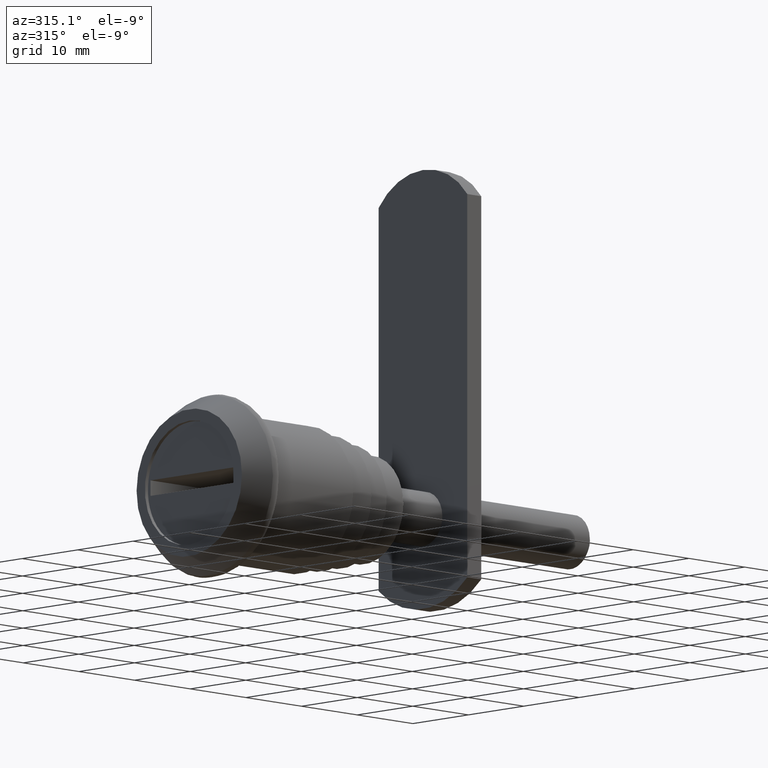
[diagram: clean part render]
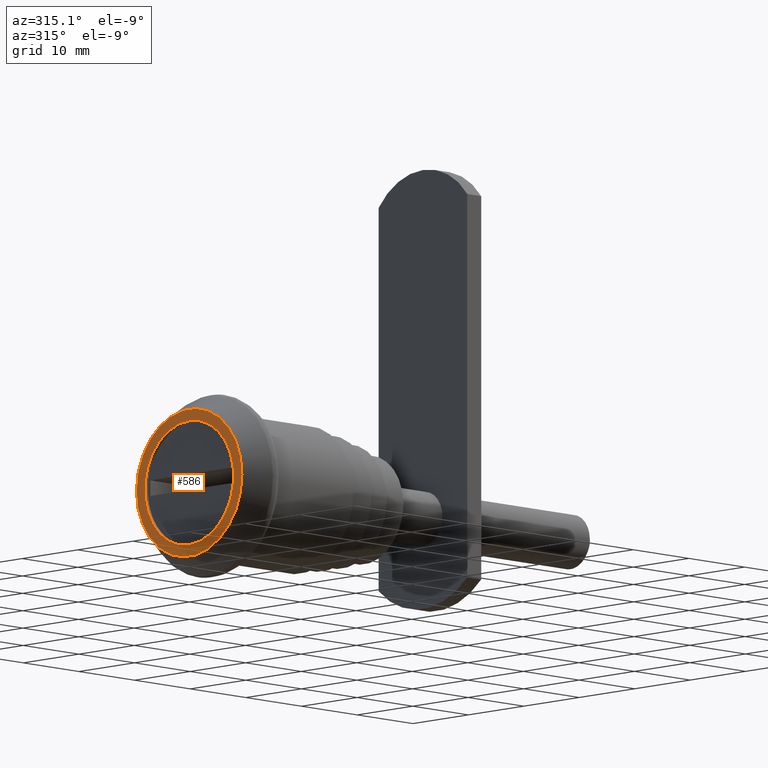
[diagram: same view with one face highlighted and labeled with its STEP entity id]
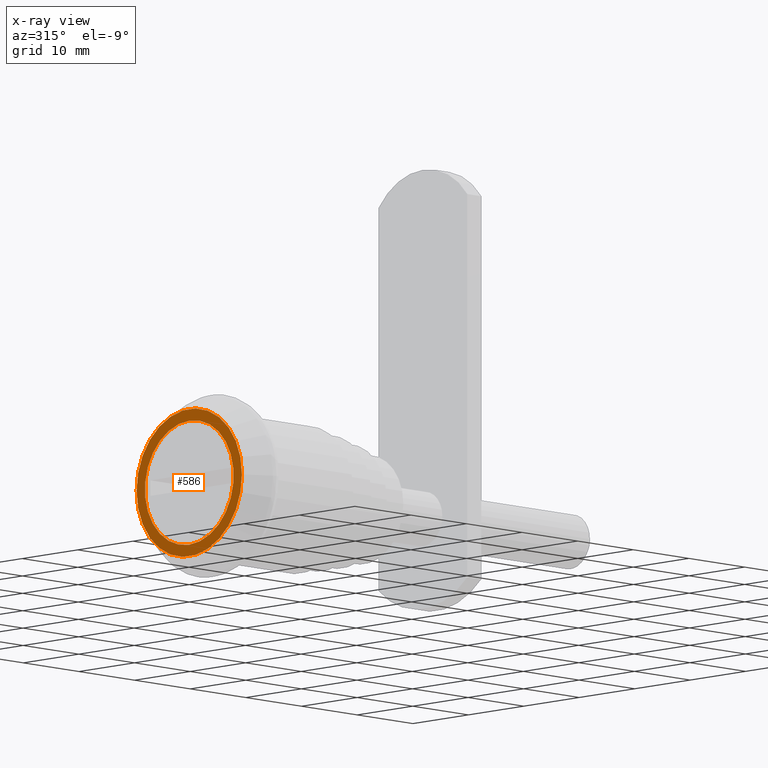
[diagram: x-ray of the same camera — body ghosted, the highlighted face saturated]
A machine part, auxiliary view. The second image highlights one B-rep face of the part: STEP entity #586.
The next image is the same camera in x-ray: the body ghosted, the highlighted face saturated — about 0% of this face is hidden behind the body in this view.
In plain terms, the highlighted planar face has unit normal (1, 0, 0).
Its self-contained STEP definition (entity closure, byte-faithful):
#527=CARTESIAN_POINT('',(0.0,9.499999999961801,0.0));
#528=VERTEX_POINT('',#527);
#535=CARTESIAN_POINT('',(0.0,-9.499999999961801,0.0));
#536=VERTEX_POINT('',#535);
#537=CARTESIAN_POINT('',(0.0,0.0,0.0));
#538=DIRECTION('',(1.0,0.0,0.0));
#539=DIRECTION('',(0.0,1.0,0.0));
#540=AXIS2_PLACEMENT_3D('',#537,#538,#539);
#541=CIRCLE('',#540,9.499999999961801);
#542=EDGE_CURVE('',#528,#536,#541,.T.);
#544=CARTESIAN_POINT('',(0.0,0.0,0.0));
#545=DIRECTION('',(1.0,0.0,0.0));
#546=DIRECTION('',(0.0,1.0,0.0));
#547=AXIS2_PLACEMENT_3D('',#544,#545,#546);
#548=CIRCLE('',#547,9.499999999961801);
#549=EDGE_CURVE('',#536,#528,#548,.T.);
#557=CARTESIAN_POINT('',(0.0,18.999999999923602,-18.999999999923602));
#558=DIRECTION('',(1.0,0.0,0.0));
#559=DIRECTION('',(0.0,0.0,1.0));
#560=AXIS2_PLACEMENT_3D('',#557,#558,#559);
#561=PLANE('',#560);
#562=ORIENTED_EDGE('',*,*,#549,.F.);
#563=ORIENTED_EDGE('',*,*,#542,.F.);
#564=EDGE_LOOP('',(#562,#563));
#565=FACE_OUTER_BOUND('',#564,.T.);
#566=CARTESIAN_POINT('',(0.0,0.0,-7.999999999968002));
#567=VERTEX_POINT('',#566);
#568=CARTESIAN_POINT('',(0.0,0.0,7.999999999968002));
#569=VERTEX_POINT('',#568);
#570=CARTESIAN_POINT('',(0.0,0.0,0.0));
#571=DIRECTION('',(-1.0,0.0,0.0));
#572=DIRECTION('',(0.0,0.0,1.0));
#573=AXIS2_PLACEMENT_3D('',#570,#571,#572);
#574=CIRCLE('',#573,7.999999999968002);
#575=EDGE_CURVE('',#567,#569,#574,.T.);
#576=ORIENTED_EDGE('',*,*,#575,.F.);
#577=CARTESIAN_POINT('',(0.0,0.0,0.0));
#578=DIRECTION('',(-1.0,0.0,0.0));
#579=DIRECTION('',(0.0,0.0,1.0));
#580=AXIS2_PLACEMENT_3D('',#577,#578,#579);
#581=CIRCLE('',#580,7.999999999968002);
#582=EDGE_CURVE('',#569,#567,#581,.T.);
#583=ORIENTED_EDGE('',*,*,#582,.F.);
#584=EDGE_LOOP('',(#576,#583));
#585=FACE_BOUND('',#584,.T.);
#586=ADVANCED_FACE('',(#565,#585),#561,.F.);